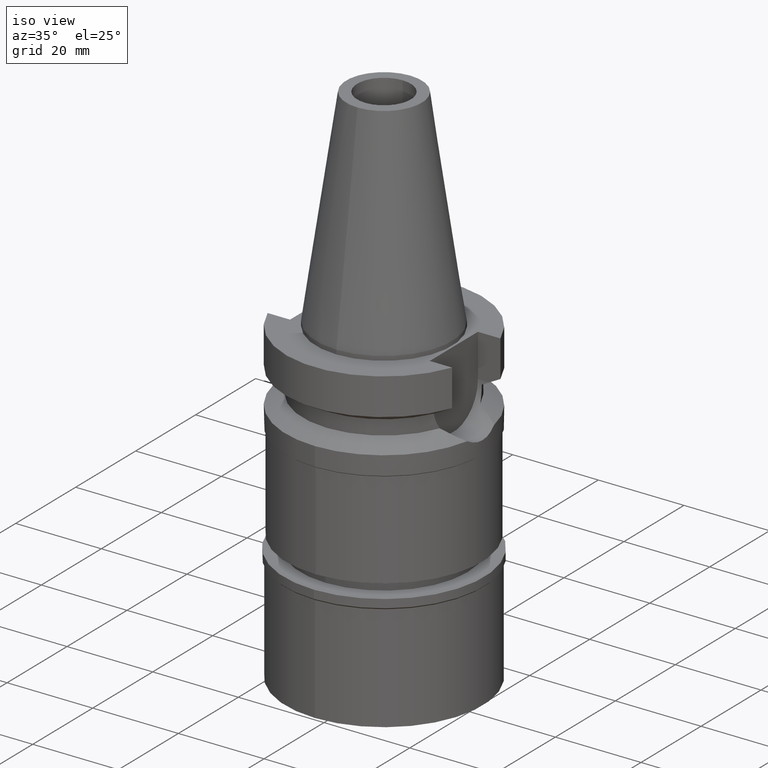
[diagram: clean part render]
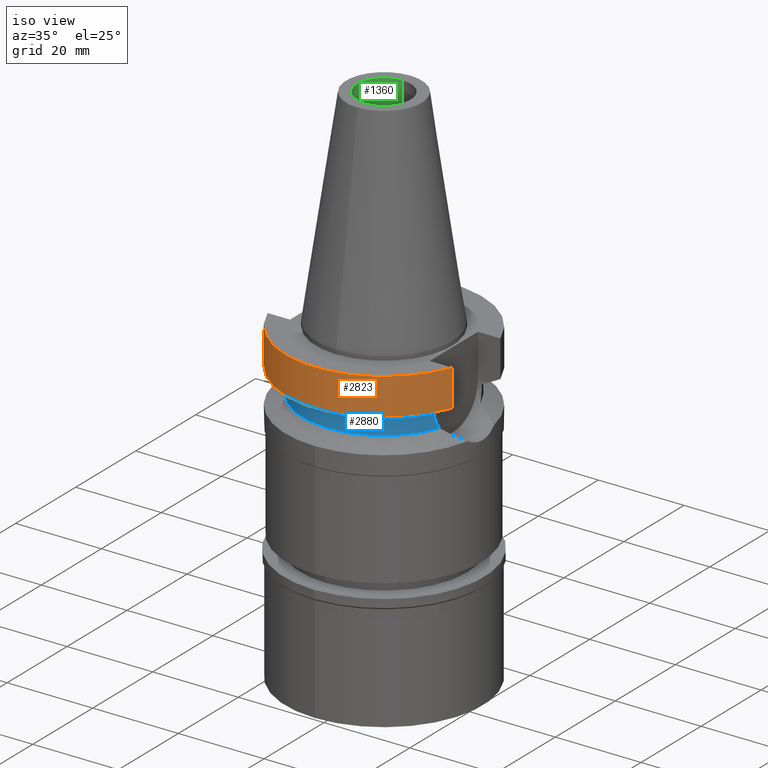
[diagram: same view with three faces highlighted in distinct colors, each labeled with its STEP entity id]
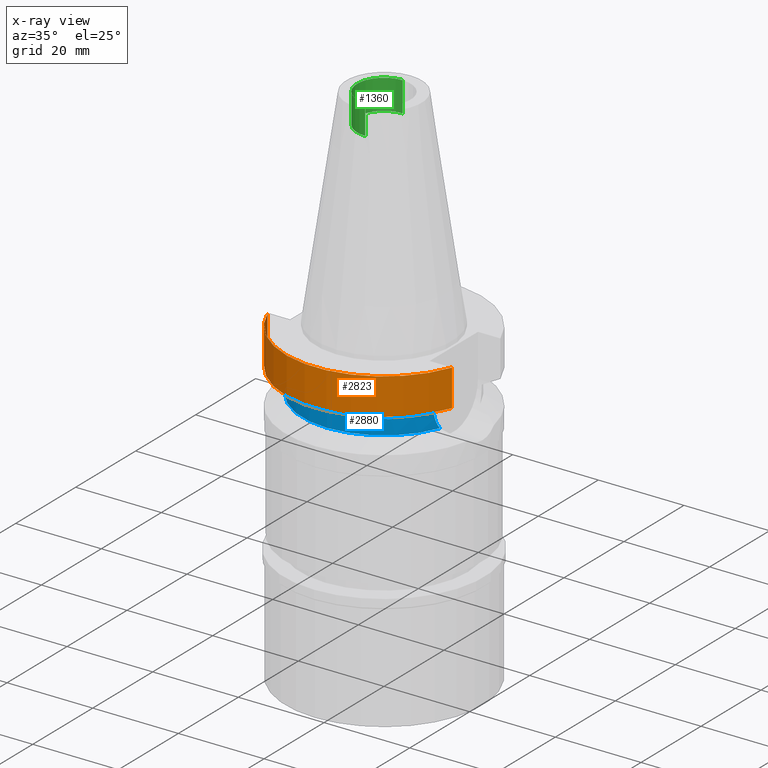
[diagram: x-ray of the same camera — body ghosted, the three highlighted faces saturated]
A machine part, iso view with three faces highlighted in distinct colors.
The next image is the same camera in x-ray (body ghosted, the three faces saturated) — at least one of them is partly hidden behind the body in this view.
Their STEP definitions:

[orange] entity #2823 — the highlighted cylindrical surface (partial cylindrical patch) has radius 23 mm, axis along (0, 0, -1).
#17 = CARTESIAN_POINT ( 'NONE',  ( 0.0000000000000000000, 0.0000000000000000000, -1.000000000000000000 ) ) ;
#45 = ORIENTED_EDGE ( 'NONE', *, *, #1007, .T. ) ;
#48 = DIRECTION ( 'NONE',  ( 0.0000000000000000000, 0.0000000000000000000, 1.000000000000000000 ) ) ;
#88 = CARTESIAN_POINT ( 'NONE',  ( 21.54524309446999908, -8.050000000000000711, -1.000000000000000000 ) ) ;
#101 = CIRCLE ( 'NONE', #1065, 23.00000000000000000 ) ;
#232 = AXIS2_PLACEMENT_3D ( 'NONE', #1006, #1191, #2113 ) ;
#435 = VERTEX_POINT ( 'NONE', #1920 ) ;
#502 = DIRECTION ( 'NONE',  ( 1.843191795637992365E-08, -4.933165888406983159E-08, 0.9999999999999985567 ) ) ;
#521 = EDGE_CURVE ( 'NONE', #2791, #1802, #2824, .T. ) ;
#525 = ORIENTED_EDGE ( 'NONE', *, *, #521, .F. ) ;
#719 = FACE_OUTER_BOUND ( 'NONE', #2037, .T. ) ;
#747 = CARTESIAN_POINT ( 'NONE',  ( -21.54524325238000060, -8.049999577366000025, -9.567211146628999074 ) ) ;
#962 = ORIENTED_EDGE ( 'NONE', *, *, #2095, .T. ) ;
#1006 = CARTESIAN_POINT ( 'NONE',  ( 0.0000000000000000000, 0.0000000000000000000, 54.01999999999999602 ) ) ;
#1007 = EDGE_CURVE ( 'NONE', #2791, #1257, #1519, .T. ) ;
#1065 = AXIS2_PLACEMENT_3D ( 'NONE', #17, #2347, #2117 ) ;
#1191 = DIRECTION ( 'NONE',  ( 0.0000000000000000000, 0.0000000000000000000, -1.000000000000000000 ) ) ;
#1216 = CARTESIAN_POINT ( 'NONE',  ( 0.0000000000000000000, 0.0000000000000000000, -9.567208369710998639 ) ) ;
#1257 = VERTEX_POINT ( 'NONE', #2705 ) ;
#1261 = VECTOR ( 'NONE', #1426, 1000.000000000000114 ) ;
#1426 = DIRECTION ( 'NONE',  ( -9.134800745262689569E-08, -2.444862507563914651E-07, -0.9999999999999659162 ) ) ;
#1466 = CARTESIAN_POINT ( 'NONE',  ( -21.54524325238000060, -8.049999577366000025, -9.567211146628999074 ) ) ;
#1489 = EDGE_CURVE ( 'NONE', #435, #1257, #2135, .T. ) ;
#1519 = CIRCLE ( 'NONE', #2685, 23.00000000000000000 ) ;
#1528 = VECTOR ( 'NONE', #502, 1000.000000000000114 ) ;
#1667 = DIRECTION ( 'NONE',  ( 0.0000000000000000000, -1.000000000000000000, 0.0000000000000000000 ) ) ;
#1802 = VERTEX_POINT ( 'NONE', #2702 ) ;
#1920 = CARTESIAN_POINT ( 'NONE',  ( 21.54524309446999908, -8.050000000000000711, -1.000000000000000000 ) ) ;
#2037 = EDGE_LOOP ( 'NONE', ( #525, #45, #2254, #962 ) ) ;
#2095 = EDGE_CURVE ( 'NONE', #435, #1802, #101, .T. ) ;
#2113 = DIRECTION ( 'NONE',  ( 0.0000000000000000000, -1.000000000000000000, 0.0000000000000000000 ) ) ;
#2117 = DIRECTION ( 'NONE',  ( 0.0000000000000000000, -1.000000000000000000, 0.0000000000000000000 ) ) ;
#2135 = LINE ( 'NONE', #88, #1261 ) ;
#2254 = ORIENTED_EDGE ( 'NONE', *, *, #1489, .F. ) ;
#2347 = DIRECTION ( 'NONE',  ( 0.0000000000000000000, 0.0000000000000000000, -1.000000000000000000 ) ) ;
#2583 = CYLINDRICAL_SURFACE ( 'NONE', #232, 23.00000000000000000 ) ;
#2685 = AXIS2_PLACEMENT_3D ( 'NONE', #1216, #48, #1667 ) ;
#2702 = CARTESIAN_POINT ( 'NONE',  ( -21.54524309446999908, -8.050000000000000711, -1.000000000000000000 ) ) ;
#2705 = CARTESIAN_POINT ( 'NONE',  ( 21.54524309446999908, -8.050000000002000888, -9.567208369710998639 ) ) ;
#2791 = VERTEX_POINT ( 'NONE', #747 ) ;
#2823 = ADVANCED_FACE ( 'NONE', ( #719 ), #2583, .T. ) ;
#2824 = LINE ( 'NONE', #1466, #1528 ) ;

[blue] entity #2880 — the highlighted cylindrical surface (partial cylindrical patch) has radius 19 mm, axis along (0, 0, -1).
#13 = CARTESIAN_POINT ( 'NONE',  ( 17.33753429471035190, -7.772924035424132683, -13.04956639070095470 ) ) ;
#31 = CARTESIAN_POINT ( 'NONE',  ( -17.26628505277001580, -7.929743581435687361, -12.45264543972447591 ) ) ;
#127 = ORIENTED_EDGE ( 'NONE', *, *, #1772, .T. ) ;
#183 = CARTESIAN_POINT ( 'NONE',  ( 17.25079912589399456, -7.963111191519517185, -12.16468723334847724 ) ) ;
#200 = B_SPLINE_CURVE_WITH_KNOTS ( 'NONE', 3,
 ( #443, #183, #2313, #937, #13, #1146, #1801, #3009, #1107, #2745, #201, #2342, #903, #2976, #883 ),
 .UNSPECIFIED., .F., .F.,
 ( 4, 2, 2, 1, 1, 1, 2, 2, 4 ),
 ( 0.0000000000000000000, 0.2500000000000047184, 0.3750000000000076605, 0.4375000000000091038, 0.4687500000000102696, 0.4843750000000108802, 0.4921875000000110467, 0.5000000000000112133, 1.000000000000000000 ),
 .UNSPECIFIED. ) ;
#201 = CARTESIAN_POINT ( 'NONE',  ( 17.41740973184772656, -7.591861673420406298, -13.62698225823839948 ) ) ;
#243 = CARTESIAN_POINT ( 'NONE',  ( -17.43825996257356437, -7.543902337116147550, -13.75966030978032961 ) ) ;
#255 = CARTESIAN_POINT ( 'NONE',  ( -17.75736593456000278, -6.758398853743999624, -15.32339055352999857 ) ) ;
#272 = VERTEX_POINT ( 'NONE', #2934 ) ;
#296 = AXIS2_PLACEMENT_3D ( 'NONE', #1382, #665, #1840 ) ;
#333 = CARTESIAN_POINT ( 'NONE',  ( 0.0000000000000000000, 0.0000000000000000000, 54.01999999999999602 ) ) ;
#337 = AXIS2_PLACEMENT_3D ( 'NONE', #580, #1724, #810 ) ;
#417 = CARTESIAN_POINT ( 'NONE',  ( -17.23531622822000386, -7.996491147958001200, -11.87660607717000083 ) ) ;
#443 = CARTESIAN_POINT ( 'NONE',  ( 17.23531135313000107, -7.996501749111999402, -11.87660739354000050 ) ) ;
#469 = CARTESIAN_POINT ( 'NONE',  ( -17.51072787952265486, -7.374839633740275069, -14.18046796381866947 ) ) ;
#483 = CARTESIAN_POINT ( 'NONE',  ( -17.32791110612700081, -7.797407457944076192, -13.04850003609909592 ) ) ;
#514 = ORIENTED_EDGE ( 'NONE', *, *, #1923, .F. ) ;
#571 = CARTESIAN_POINT ( 'NONE',  ( 17.23531135313000107, -7.996501749111999402, -11.87660739354000050 ) ) ;
#580 = CARTESIAN_POINT ( 'NONE',  ( 0.0000000000000000000, 0.0000000000000000000, -11.87660944646999894 ) ) ;
#646 = CARTESIAN_POINT ( 'NONE',  ( -17.45719485031835205, -7.500152504345084736, -13.87559139681874676 ) ) ;
#665 = DIRECTION ( 'NONE',  ( 0.0000000000000000000, 0.0000000000000000000, 1.000000000000000000 ) ) ;
#804 = DIRECTION ( 'NONE',  ( 0.0000000000000000000, 0.0000000000000000000, -1.000000000000000000 ) ) ;
#810 = DIRECTION ( 'NONE',  ( 0.0000000000000000000, -1.000000000000000000, 0.0000000000000000000 ) ) ;
#883 = CARTESIAN_POINT ( 'NONE',  ( 17.75736593456000278, -6.758398853743999624, -15.32339055352999857 ) ) ;
#903 = CARTESIAN_POINT ( 'NONE',  ( 17.50086807617384821, -7.400179108631099290, -14.16641331418213845 ) ) ;
#912 = CARTESIAN_POINT ( 'NONE',  ( -17.42163631457474793, -7.582155995863029574, -13.65434988445094611 ) ) ;
#937 = CARTESIAN_POINT ( 'NONE',  ( 17.32020187248922127, -7.811452264172602078, -12.90108126290883739 ) ) ;
#1107 = CARTESIAN_POINT ( 'NONE',  ( 17.41029288300090627, -7.608179589571717472, -13.58035844458878749 ) ) ;
#1146 = CARTESIAN_POINT ( 'NONE',  ( 17.36640948879379565, -7.707982828176216827, -13.27282317297279235 ) ) ;
#1186 = CARTESIAN_POINT ( 'NONE',  ( -17.42527060194236910, -7.573803216158518481, -13.67765102011163236 ) ) ;
#1202 = AXIS2_PLACEMENT_3D ( 'NONE', #333, #804, #2489 ) ;
#1265 = ORIENTED_EDGE ( 'NONE', *, *, #2582, .F. ) ;
#1382 = CARTESIAN_POINT ( 'NONE',  ( 0.0000000000000000000, 0.0000000000000000000, -15.32339055352999857 ) ) ;
#1414 = CARTESIAN_POINT ( 'NONE',  ( -17.68527465925482289, -6.947815190946712960, -15.03067689337112611 ) ) ;
#1574 = CARTESIAN_POINT ( 'NONE',  ( -17.53683850617921181, -7.312769253757403831, -14.31902481035358221 ) ) ;
#1607 = CARTESIAN_POINT ( 'NONE',  ( -17.47454244283665048, -7.459747681737656677, -13.97656327324755487 ) ) ;
#1716 = CYLINDRICAL_SURFACE ( 'NONE', #1202, 19.00000000000000000 ) ;
#1724 = DIRECTION ( 'NONE',  ( 0.0000000000000000000, 0.0000000000000000000, -1.000000000000000000 ) ) ;
#1772 = EDGE_CURVE ( 'NONE', #3001, #2910, #2197, .T. ) ;
#1779 = EDGE_LOOP ( 'NONE', ( #514, #2153, #1265, #127 ) ) ;
#1801 = CARTESIAN_POINT ( 'NONE',  ( 17.38156622602344470, -7.673725376885411009, -13.38458314353863443 ) ) ;
#1814 = CARTESIAN_POINT ( 'NONE',  ( 17.75736593456000278, -6.758398853743999624, -15.32339055352999857 ) ) ;
#1840 = DIRECTION ( 'NONE',  ( 0.0000000000000000000, -1.000000000000000000, 0.0000000000000000000 ) ) ;
#1923 = EDGE_CURVE ( 'NONE', #272, #2910, #2681, .T. ) ;
#1938 = EDGE_CURVE ( 'NONE', #272, #2598, #2974, .T. ) ;
#1963 = CARTESIAN_POINT ( 'NONE',  ( -17.23531622822000386, -7.996491147958001200, -11.87660607717000083 ) ) ;
#2071 = CARTESIAN_POINT ( 'NONE',  ( -17.42911851124947376, -7.564954524478351594, -13.70217975922369291 ) ) ;
#2120 = CARTESIAN_POINT ( 'NONE',  ( -17.42272085252563940, -7.579664040946560988, -13.66132223665699819 ) ) ;
#2153 = ORIENTED_EDGE ( 'NONE', *, *, #1938, .T. ) ;
#2197 = CIRCLE ( 'NONE', #337, 19.00000000000000000 ) ;
#2218 = FACE_OUTER_BOUND ( 'NONE', #1779, .T. ) ;
#2305 = CARTESIAN_POINT ( 'NONE',  ( -17.62113139274647722, -7.108367418537759441, -14.74095000876842043 ) ) ;
#2313 = CARTESIAN_POINT ( 'NONE',  ( 17.27395772732929302, -7.913379800553383525, -12.45762674819685500 ) ) ;
#2342 = CARTESIAN_POINT ( 'NONE',  ( 17.41902886904461667, -7.588145056447471504, -13.63749496349985435 ) ) ;
#2489 = DIRECTION ( 'NONE',  ( 0.0000000000000000000, -1.000000000000000000, 0.0000000000000000000 ) ) ;
#2582 = EDGE_CURVE ( 'NONE', #3001, #2598, #200, .T. ) ;
#2598 = VERTEX_POINT ( 'NONE', #1814 ) ;
#2681 = B_SPLINE_CURVE_WITH_KNOTS ( 'NONE', 3,
 ( #255, #1414, #2305, #1574, #469, #1607, #646, #243, #2071, #1186, #2120, #912, #483, #31, #417 ),
 .UNSPECIFIED., .F., .F.,
 ( 4, 2, 2, 1, 1, 1, 2, 2, 4 ),
 ( 0.0000000000000000000, 0.2500000000000112688, 0.3750000000000172640, 0.4375000000000204836, 0.4687500000000224820, 0.4843750000000227041, 0.4921875000000227596, 0.5000000000000227596, 1.000000000000000000 ),
 .UNSPECIFIED. ) ;
#2745 = CARTESIAN_POINT ( 'NONE',  ( 17.41455400305664725, -7.598412036639295764, -13.60833259783796478 ) ) ;
#2880 = ADVANCED_FACE ( 'NONE', ( #2218 ), #1716, .T. ) ;
#2910 = VERTEX_POINT ( 'NONE', #1963 ) ;
#2934 = CARTESIAN_POINT ( 'NONE',  ( -17.75736593456000278, -6.758398853743999624, -15.32339055352999857 ) ) ;
#2974 = CIRCLE ( 'NONE', #296, 19.00000000000000000 ) ;
#2976 = CARTESIAN_POINT ( 'NONE',  ( 17.61322740977062296, -7.137115852429624319, -14.73814199214981180 ) ) ;
#3001 = VERTEX_POINT ( 'NONE', #571 ) ;
#3009 = CARTESIAN_POINT ( 'NONE',  ( 17.40050758145359922, -7.630565565504817904, -13.51508960615575106 ) ) ;

[green] entity #1360 — the highlighted cylindrical surface (edge-blend (fillet) strip) has radius 6.25 mm, axis along (0, 0, -1).
#115 = AXIS2_PLACEMENT_3D ( 'NONE', #2608, #2382, #1231 ) ;
#237 = FACE_OUTER_BOUND ( 'NONE', #2695, .T. ) ;
#428 = CARTESIAN_POINT ( 'NONE',  ( 0.0000000000000000000, -6.250000000000000000, 41.39999999999999858 ) ) ;
#455 = ORIENTED_EDGE ( 'NONE', *, *, #1525, .T. ) ;
#549 = CARTESIAN_POINT ( 'NONE',  ( 0.0000000000000000000, 6.250000000000000000, 41.39999999999999858 ) ) ;
#582 = ORIENTED_EDGE ( 'NONE', *, *, #1233, .T. ) ;
#663 = DIRECTION ( 'NONE',  ( 0.0000000000000000000, -1.000000000000000000, 0.0000000000000000000 ) ) ;
#740 = ORIENTED_EDGE ( 'NONE', *, *, #1366, .F. ) ;
#813 = ORIENTED_EDGE ( 'NONE', *, *, #1045, .T. ) ;
#1014 = LINE ( 'NONE', #549, #1167 ) ;
#1036 = CIRCLE ( 'NONE', #115, 6.250000000000000000 ) ;
#1045 = EDGE_CURVE ( 'NONE', #2144, #1831, #1036, .T. ) ;
#1046 = CARTESIAN_POINT ( 'NONE',  ( 0.0000000000000000000, -6.250000000000000000, 48.39999999999999858 ) ) ;
#1069 = DIRECTION ( 'NONE',  ( 0.0000000000000000000, 1.000000000000000000, 0.0000000000000000000 ) ) ;
#1098 = DIRECTION ( 'NONE',  ( 0.0000000000000000000, 0.0000000000000000000, 1.000000000000000000 ) ) ;
#1108 = CIRCLE ( 'NONE', #2719, 6.250000000000000000 ) ;
#1167 = VECTOR ( 'NONE', #2420, 1000.000000000000000 ) ;
#1231 = DIRECTION ( 'NONE',  ( 0.0000000000000000000, -1.000000000000000000, 0.0000000000000000000 ) ) ;
#1233 = EDGE_CURVE ( 'NONE', #1535, #1243, #1108, .T. ) ;
#1243 = VERTEX_POINT ( 'NONE', #1046 ) ;
#1306 = DIRECTION ( 'NONE',  ( 0.0000000000000000000, 0.0000000000000000000, 1.000000000000000000 ) ) ;
#1360 = ADVANCED_FACE ( 'NONE', ( #237 ), #2531, .F. ) ;
#1366 = EDGE_CURVE ( 'NONE', #2144, #1243, #2331, .T. ) ;
#1525 = EDGE_CURVE ( 'NONE', #1831, #1535, #1014, .T. ) ;
#1535 = VERTEX_POINT ( 'NONE', #1694 ) ;
#1694 = CARTESIAN_POINT ( 'NONE',  ( 0.0000000000000000000, 6.250000000000000000, 48.39999999999999858 ) ) ;
#1807 = CARTESIAN_POINT ( 'NONE',  ( 0.0000000000000000000, 0.0000000000000000000, 54.01999999999999602 ) ) ;
#1831 = VERTEX_POINT ( 'NONE', #1837 ) ;
#1837 = CARTESIAN_POINT ( 'NONE',  ( 0.0000000000000000000, 6.250000000000000000, 41.39999999999999858 ) ) ;
#2144 = VERTEX_POINT ( 'NONE', #428 ) ;
#2303 = CARTESIAN_POINT ( 'NONE',  ( 0.0000000000000000000, -6.250000000000000000, 41.39999999999999858 ) ) ;
#2331 = LINE ( 'NONE', #2303, #2627 ) ;
#2382 = DIRECTION ( 'NONE',  ( 0.0000000000000000000, 0.0000000000000000000, -1.000000000000000000 ) ) ;
#2420 = DIRECTION ( 'NONE',  ( 0.0000000000000000000, 0.0000000000000000000, 1.000000000000000000 ) ) ;
#2434 = AXIS2_PLACEMENT_3D ( 'NONE', #1807, #2982, #663 ) ;
#2467 = CARTESIAN_POINT ( 'NONE',  ( 0.0000000000000000000, 0.0000000000000000000, 48.39999999999999858 ) ) ;
#2531 = CYLINDRICAL_SURFACE ( 'NONE', #2434, 6.250000000000000000 ) ;
#2608 = CARTESIAN_POINT ( 'NONE',  ( 0.0000000000000000000, 0.0000000000000000000, 41.39999999999999858 ) ) ;
#2627 = VECTOR ( 'NONE', #1098, 1000.000000000000000 ) ;
#2695 = EDGE_LOOP ( 'NONE', ( #582, #740, #813, #455 ) ) ;
#2719 = AXIS2_PLACEMENT_3D ( 'NONE', #2467, #1306, #1069 ) ;
#2982 = DIRECTION ( 'NONE',  ( 0.0000000000000000000, 0.0000000000000000000, -1.000000000000000000 ) ) ;